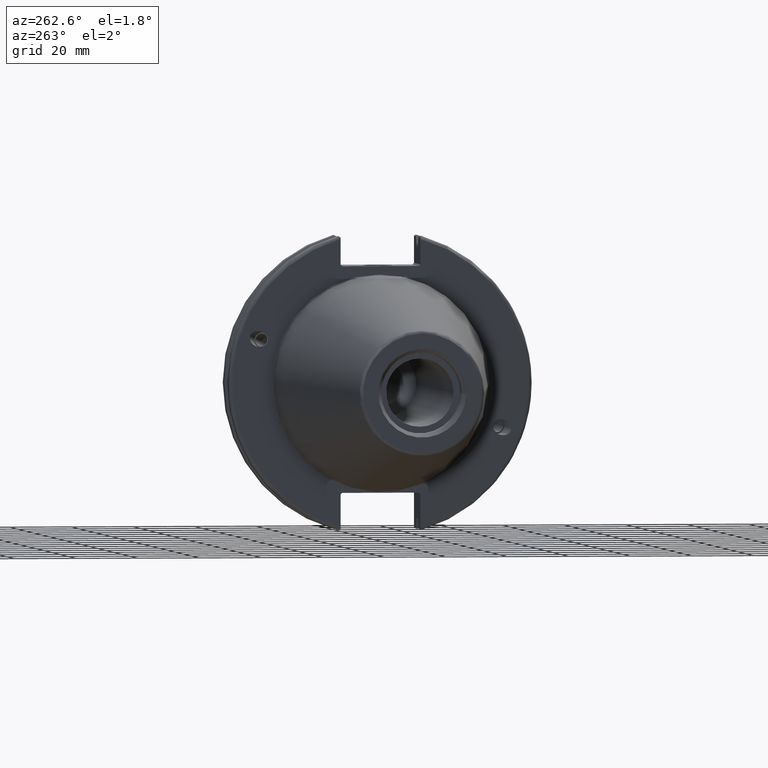
[diagram: clean part render]
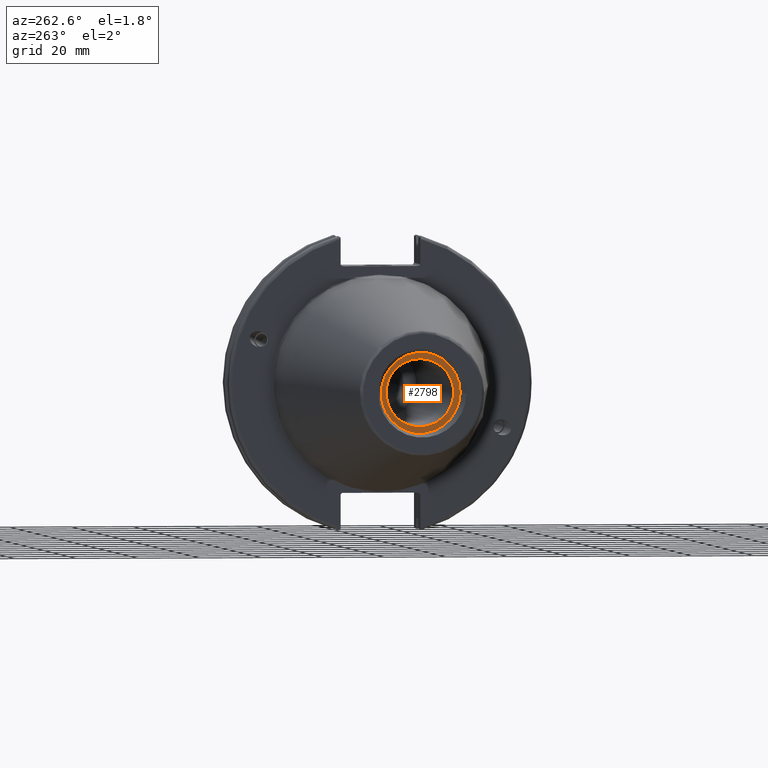
[diagram: same view with one face highlighted and labeled with its STEP entity id]
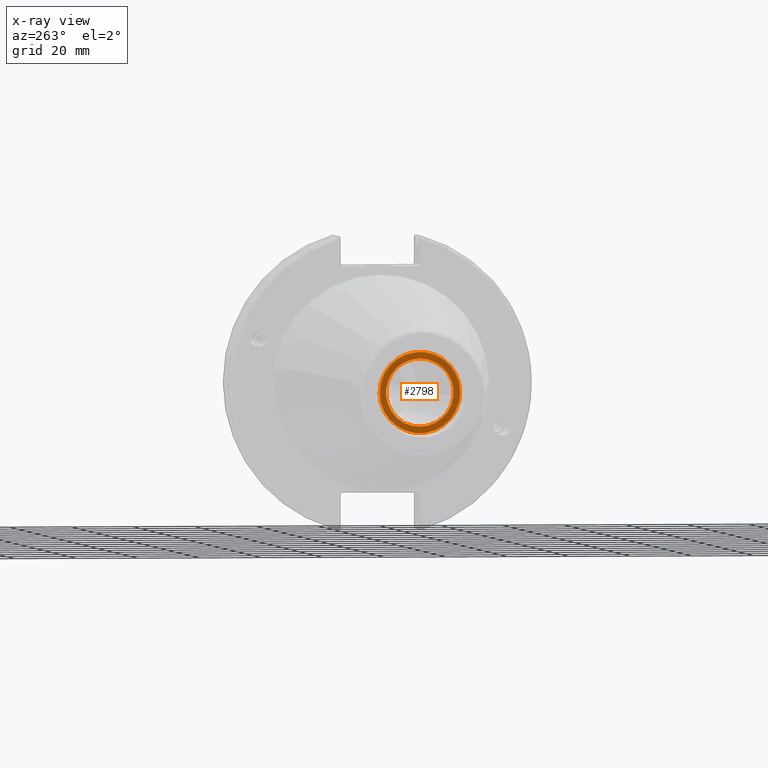
[diagram: x-ray of the same camera — body ghosted, the highlighted face saturated]
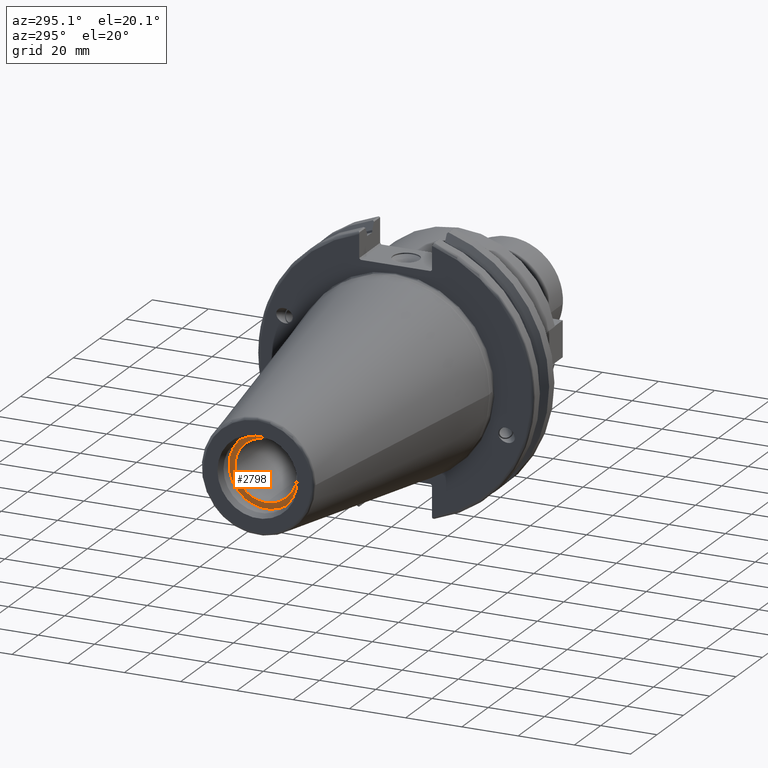
[diagram: same view with one face highlighted and labeled with its STEP entity id]
A machine part, auxiliary view. The second image highlights one B-rep face of the part: STEP entity #2798.
The next image is the same camera in x-ray: the body ghosted, the highlighted face saturated — about 0% of this face is hidden behind the body in this view.
A second angle (auxiliary view) of the same face is appended — the face is thin or edge-on in the first view.
In plain terms, the highlighted planar face has unit normal (-1, 0, 0).
Its self-contained STEP definition (entity closure, byte-faithful):
#593=FACE_BOUND('',#977,.T.);
#619=CIRCLE('',#3044,10.9855);
#672=CIRCLE('',#3168,13.1);
#816=FACE_OUTER_BOUND('',#976,.T.);
#976=EDGE_LOOP('',(#2397));
#977=EDGE_LOOP('',(#2398));
#1403=VERTEX_POINT('',#4315);
#1532=VERTEX_POINT('',#5105);
#1648=EDGE_CURVE('',#1403,#1403,#619,.T.);
#1836=EDGE_CURVE('',#1532,#1532,#672,.T.);
#2397=ORIENTED_EDGE('',*,*,#1836,.F.);
#2398=ORIENTED_EDGE('',*,*,#1648,.T.);
#2681=PLANE('',#3167);
#2798=ADVANCED_FACE('',(#816,#593),#2681,.T.);
#3044=AXIS2_PLACEMENT_3D('',#4316,#3429,#3430);
#3167=AXIS2_PLACEMENT_3D('',#5104,#3758,#3759);
#3168=AXIS2_PLACEMENT_3D('',#5106,#3760,#3761);
#3429=DIRECTION('center_axis',(1.,0.,0.));
#3430=DIRECTION('ref_axis',(0.,0.,1.));
#3758=DIRECTION('center_axis',(-1.,0.,0.));
#3759=DIRECTION('ref_axis',(0.,0.,1.));
#3760=DIRECTION('center_axis',(1.,0.,0.));
#3761=DIRECTION('ref_axis',(0.,0.,-1.));
#4315=CARTESIAN_POINT('',(-95.25,1.34533574120333E-15,-10.9855));
#4316=CARTESIAN_POINT('Origin',(-95.25,0.,0.));
#5104=CARTESIAN_POINT('Origin',(-95.25,13.1,0.));
#5105=CARTESIAN_POINT('',(-95.25,-13.1,-1.60428730688303E-15));
#5106=CARTESIAN_POINT('Origin',(-95.25,0.,0.));